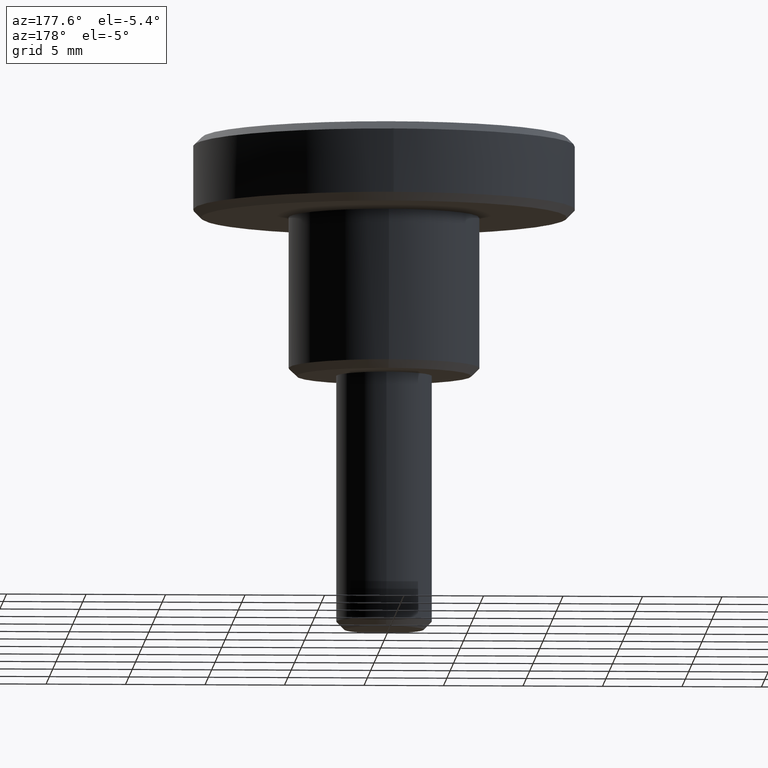
[diagram: clean part render]
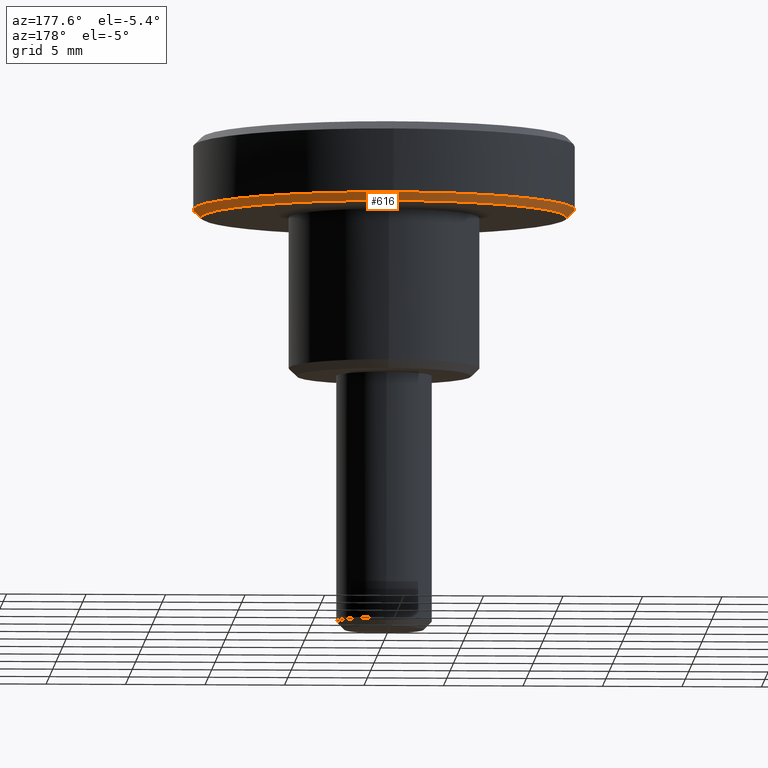
[diagram: same view with one face highlighted and labeled with its STEP entity id]
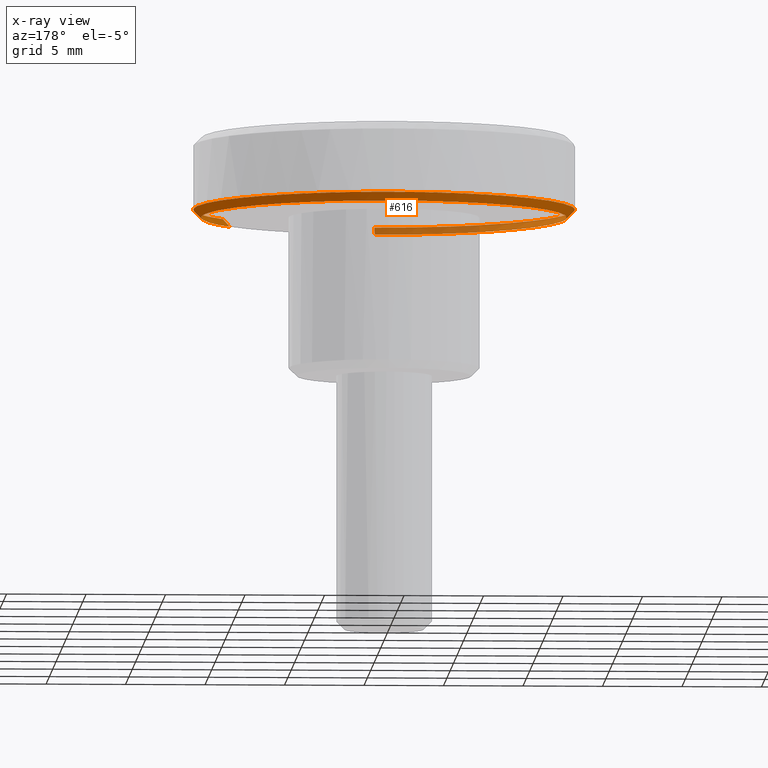
[diagram: x-ray of the same camera — body ghosted, the highlighted face saturated]
A machine part, auxiliary view. The second image highlights one B-rep face of the part: STEP entity #616.
The next image is the same camera in x-ray: the body ghosted, the highlighted face saturated — about 17% of this face is hidden behind the body in this view.
In plain terms, the highlighted face is a freeform B-spline surface patch.
Its self-contained STEP definition (entity closure, byte-faithful):
#461=CARTESIAN_POINT('',(9.406724469765697,-6.593647776452057,9.987500000000001));
#462=CARTESIAN_POINT('',(11.519179152623552,-3.579947343821037,9.987499999999999));
#463=CARTESIAN_POINT('',(11.487062591199660,0.100246076537570,9.987499999999999));
#464=CARTESIAN_POINT('',(11.386816514662092,11.587308667737231,9.987499999999999));
#465=CARTESIAN_POINT('',(-0.100246076537570,11.487062591199660,9.987499999999999));
#466=CARTESIAN_POINT('',(-11.587308667737231,11.386816514662092,9.987499999999999));
#467=CARTESIAN_POINT('',(-11.487062591199660,-0.100246076537570,9.987499999999999));
#468=CARTESIAN_POINT('',(-11.386816514662092,-11.587308667737231,9.987499999999999));
#469=CARTESIAN_POINT('',(0.100246076537570,-11.487062591199660,9.987499999999999));
#470=CARTESIAN_POINT('',(9.836885074599064,-6.895169047186953,10.512812500000004));
#471=CARTESIAN_POINT('',(12.045940310282912,-3.743654946785199,10.512812500000003));
#472=CARTESIAN_POINT('',(12.012355088909260,0.104830234716559,10.512812500000001));
#473=CARTESIAN_POINT('',(11.907524854192697,12.117185323625815,10.512812500000003));
#474=CARTESIAN_POINT('',(-0.104830234716559,12.012355088909260,10.512812500000001));
#475=CARTESIAN_POINT('',(-12.117185323625815,11.907524854192697,10.512812500000003));
#476=CARTESIAN_POINT('',(-12.012355088909260,-0.104830234716559,10.512812500000001));
#477=CARTESIAN_POINT('',(-11.907524854192697,-12.117185323625815,10.512812500000003));
#478=CARTESIAN_POINT('',(0.104830234716559,-12.012355088909260,10.512812500000001));
#486=(BOUNDED_SURFACE()B_SPLINE_SURFACE(2,1,((#461,#470),(#462,#471),(#463,#472),(#464,#473),(#465,#474),(#466,#475),(#467,#476),(#468,#477),(#469,#478)),.UNSPECIFIED.,.F.,.F.,.U.)B_SPLINE_SURFACE_WITH_KNOTS((3,2,2,2,3),(2,2),(0.0,7.961391775592033,27.864871214572119,47.768350653552197,67.671830092532289),(0.0,1.0),.UNSPECIFIED.)GEOMETRIC_REPRESENTATION_ITEM()RATIONAL_B_SPLINE_SURFACE(((0.859411254969543,0.859411254969543),(0.882842712474619,0.882842712474619),(1.0,1.0),(0.707106781186548,0.707106781186548),(1.0,1.0),(0.707106781186548,0.707106781186548),(1.0,1.0),(0.707106781186548,0.707106781186548),(1.0,1.0)))REPRESENTATION_ITEM('')SURFACE());
#487=CARTESIAN_POINT('',(11.500000000000000,0.0,10.0));
#488=VERTEX_POINT('',#487);
#489=CARTESIAN_POINT('',(9.416960296170363,-6.600822583614759,10.000000000000339));
#490=VERTEX_POINT('',#489);
#491=CARTESIAN_POINT('',(11.500000000000000,0.0,10.0));
#492=CARTESIAN_POINT('',(11.500000000000002,-3.629086570745974,10.000000000000002));
#493=CARTESIAN_POINT('',(9.416960296170363,-6.600822583614759,10.000000000000336));
#501=(BOUNDED_CURVE()B_SPLINE_CURVE(2,(#491,#492,#493),.UNSPECIFIED.,.F.,.U.)B_SPLINE_CURVE_WITH_KNOTS((3,3),(0.0,0.098673726203079),.UNSPECIFIED.)CURVE()GEOMETRIC_REPRESENTATION_ITEM()RATIONAL_B_SPLINE_CURVE((1.0,0.884396538880251,0.860049271925770))REPRESENTATION_ITEM(''));
#502=EDGE_CURVE('',#488,#490,#501,.T.);
#503=ORIENTED_EDGE('',*,*,#502,.F.);
#504=CARTESIAN_POINT('',(-11.500000000000000,0.0,10.0));
#505=VERTEX_POINT('',#504);
#506=CARTESIAN_POINT('',(-11.500000000000000,0.0,10.0));
#507=CARTESIAN_POINT('',(-11.500000000000000,11.500000000000000,10.000000000000002));
#508=CARTESIAN_POINT('',(0.0,11.500000000000000,10.0));
#509=CARTESIAN_POINT('',(11.500000000000000,11.500000000000000,10.000000000000002));
#510=CARTESIAN_POINT('',(11.500000000000000,0.0,10.0));
#518=(BOUNDED_CURVE()B_SPLINE_CURVE(2,(#506,#507,#508,#509,#510),.UNSPECIFIED.,.F.,.U.)B_SPLINE_CURVE_WITH_KNOTS((3,2,3),(0.500000000000000,0.750000000000000,1.0),.UNSPECIFIED.)CURVE()GEOMETRIC_REPRESENTATION_ITEM()RATIONAL_B_SPLINE_CURVE((1.0,0.707106781186548,1.0,0.707106781186548,1.0))REPRESENTATION_ITEM(''));
#519=EDGE_CURVE('',#505,#488,#518,.T.);
#520=ORIENTED_EDGE('',*,*,#519,.F.);
#521=CARTESIAN_POINT('',(0.100355158261158,-11.499562115241771,10.000000000004061));
#522=VERTEX_POINT('',#521);
#523=CARTESIAN_POINT('',(0.100355158261158,-11.499562115241769,10.000000000004064));
#524=CARTESIAN_POINT('',(0.050178534467893,-11.500000000000000,10.000000000000002));
#525=CARTESIAN_POINT('',(0.0,-11.500000000000000,10.0));
#526=CARTESIAN_POINT('',(-11.500000000000000,-11.500000000000000,10.000000000000002));
#527=CARTESIAN_POINT('',(-11.500000000000000,0.0,10.0));
#535=(BOUNDED_CURVE()B_SPLINE_CURVE(2,(#523,#524,#525,#526,#527),.UNSPECIFIED.,.F.,.U.)B_SPLINE_CURVE_WITH_KNOTS((3,2,3),(0.248460105664099,0.250000000000000,0.500000000000000),.UNSPECIFIED.)CURVE()GEOMETRIC_REPRESENTATION_ITEM()RATIONAL_B_SPLINE_CURVE((0.996414028098291,0.998195901565302,1.0,0.707106781186548,1.0))REPRESENTATION_ITEM(''));
#536=EDGE_CURVE('',#522,#505,#535,.T.);
#537=ORIENTED_EDGE('',*,*,#536,.F.);
#538=CARTESIAN_POINT('',(0.104718425980838,-11.999543076770090,10.500000000000060));
#539=VERTEX_POINT('',#538);
#540=CARTESIAN_POINT('',(0.100355158261158,-11.499562115241771,10.000000000004061));
#541=CARTESIAN_POINT('',(0.104718425980838,-11.999543076770090,10.500000000000060));
#542=QUASI_UNIFORM_CURVE('',1,(#540,#541),.UNSPECIFIED.,.F.,.U.);
#543=EDGE_CURVE('',#522,#539,#542,.T.);
#544=ORIENTED_EDGE('',*,*,#543,.T.);
#545=CARTESIAN_POINT('',(-12.0,0.0,10.500000000000000));
#546=VERTEX_POINT('',#545);
#547=CARTESIAN_POINT('',(-12.0,0.0,10.500000000000000));
#548=CARTESIAN_POINT('',(-12.0,-12.0,10.500000000000002));
#549=CARTESIAN_POINT('',(0.0,-12.0,10.500000000000000));
#550=CARTESIAN_POINT('',(0.052360209848767,-12.0,10.499999999999998));
#551=CARTESIAN_POINT('',(0.104718425980838,-11.999543076770081,10.500000000000068));
#559=(BOUNDED_CURVE()B_SPLINE_CURVE(2,(#547,#548,#549,#550,#551),.UNSPECIFIED.,.F.,.U.)B_SPLINE_CURVE_WITH_KNOTS((3,2,3),(0.0,0.250000000000000,0.251539894334997),.UNSPECIFIED.)CURVE()GEOMETRIC_REPRESENTATION_ITEM()RATIONAL_B_SPLINE_CURVE((1.0,0.707106781186548,1.0,0.998195901566360,0.996414028100382))REPRESENTATION_ITEM(''));
#560=EDGE_CURVE('',#546,#539,#559,.T.);
#561=ORIENTED_EDGE('',*,*,#560,.F.);
#562=CARTESIAN_POINT('',(-0.104708313807311,11.999543165009131,10.500000000000000));
#563=VERTEX_POINT('',#562);
#564=CARTESIAN_POINT('',(-0.104708313807311,11.999543165009134,10.499999999999996));
#565=CARTESIAN_POINT('',(-12.000000000000002,11.895744552217918,10.500000000000000));
#566=CARTESIAN_POINT('',(-12.0,0.0,10.500000000000000));
#574=(BOUNDED_CURVE()B_SPLINE_CURVE(2,(#564,#565,#566),.UNSPECIFIED.,.F.,.U.)B_SPLINE_CURVE_WITH_KNOTS((3,3),(0.751539745897120,1.0),.UNSPECIFIED.)CURVE()GEOMETRIC_REPRESENTATION_ITEM()RATIONAL_B_SPLINE_CURVE((0.996414371627425,0.708910705714397,1.0))REPRESENTATION_ITEM(''));
#575=EDGE_CURVE('',#563,#546,#574,.T.);
#576=ORIENTED_EDGE('',*,*,#575,.F.);
#577=CARTESIAN_POINT('',(12.0,0.0,10.500000000000000));
#578=VERTEX_POINT('',#577);
#579=CARTESIAN_POINT('',(12.0,0.0,10.500000000000000));
#580=CARTESIAN_POINT('',(12.0,12.0,10.500000000000002));
#581=CARTESIAN_POINT('',(0.0,12.0,10.500000000000000));
#582=CARTESIAN_POINT('',(-0.052355153473084,12.000000000000002,10.499999999999996));
#583=CARTESIAN_POINT('',(-0.104708313807311,11.999543165009134,10.499999999999996));
#591=(BOUNDED_CURVE()B_SPLINE_CURVE(2,(#579,#580,#581,#582,#583),.UNSPECIFIED.,.F.,.U.)B_SPLINE_CURVE_WITH_KNOTS((3,2,3),(0.500000000000000,0.750000000000000,0.751539745897120),.UNSPECIFIED.)CURVE()GEOMETRIC_REPRESENTATION_ITEM()RATIONAL_B_SPLINE_CURVE((1.0,0.707106781186548,1.0,0.998196075472151,0.996414371627425))REPRESENTATION_ITEM(''));
#592=EDGE_CURVE('',#578,#563,#591,.T.);
#593=ORIENTED_EDGE('',*,*,#592,.F.);
#594=CARTESIAN_POINT('',(9.826393352528289,-6.887814869854642,10.500000000000149));
#595=VERTEX_POINT('',#594);
#596=CARTESIAN_POINT('',(9.826393352528289,-6.887814869854643,10.500000000000149));
#597=CARTESIAN_POINT('',(12.0,-3.786872943381589,10.499999999999998));
#598=CARTESIAN_POINT('',(12.0,0.0,10.500000000000000));
#606=(BOUNDED_CURVE()B_SPLINE_CURVE(2,(#596,#597,#598),.UNSPECIFIED.,.F.,.U.)B_SPLINE_CURVE_WITH_KNOTS((3,3),(0.401326273797048,0.500000000000000),.UNSPECIFIED.)CURVE()GEOMETRIC_REPRESENTATION_ITEM()RATIONAL_B_SPLINE_CURVE((0.860049271925832,0.884396538880400,1.0))REPRESENTATION_ITEM(''));
#607=EDGE_CURVE('',#595,#578,#606,.T.);
#608=ORIENTED_EDGE('',*,*,#607,.F.);
#609=CARTESIAN_POINT('',(9.416960296170363,-6.600822583614759,10.000000000000339));
#610=CARTESIAN_POINT('',(9.826393352528289,-6.887814869854642,10.500000000000149));
#611=QUASI_UNIFORM_CURVE('',1,(#609,#610),.UNSPECIFIED.,.F.,.U.);
#612=EDGE_CURVE('',#490,#595,#611,.T.);
#613=ORIENTED_EDGE('',*,*,#612,.F.);
#614=EDGE_LOOP('',(#503,#520,#537,#544,#561,#576,#593,#608,#613));
#615=FACE_OUTER_BOUND('',#614,.T.);
#616=ADVANCED_FACE('',(#615),#486,.T.);